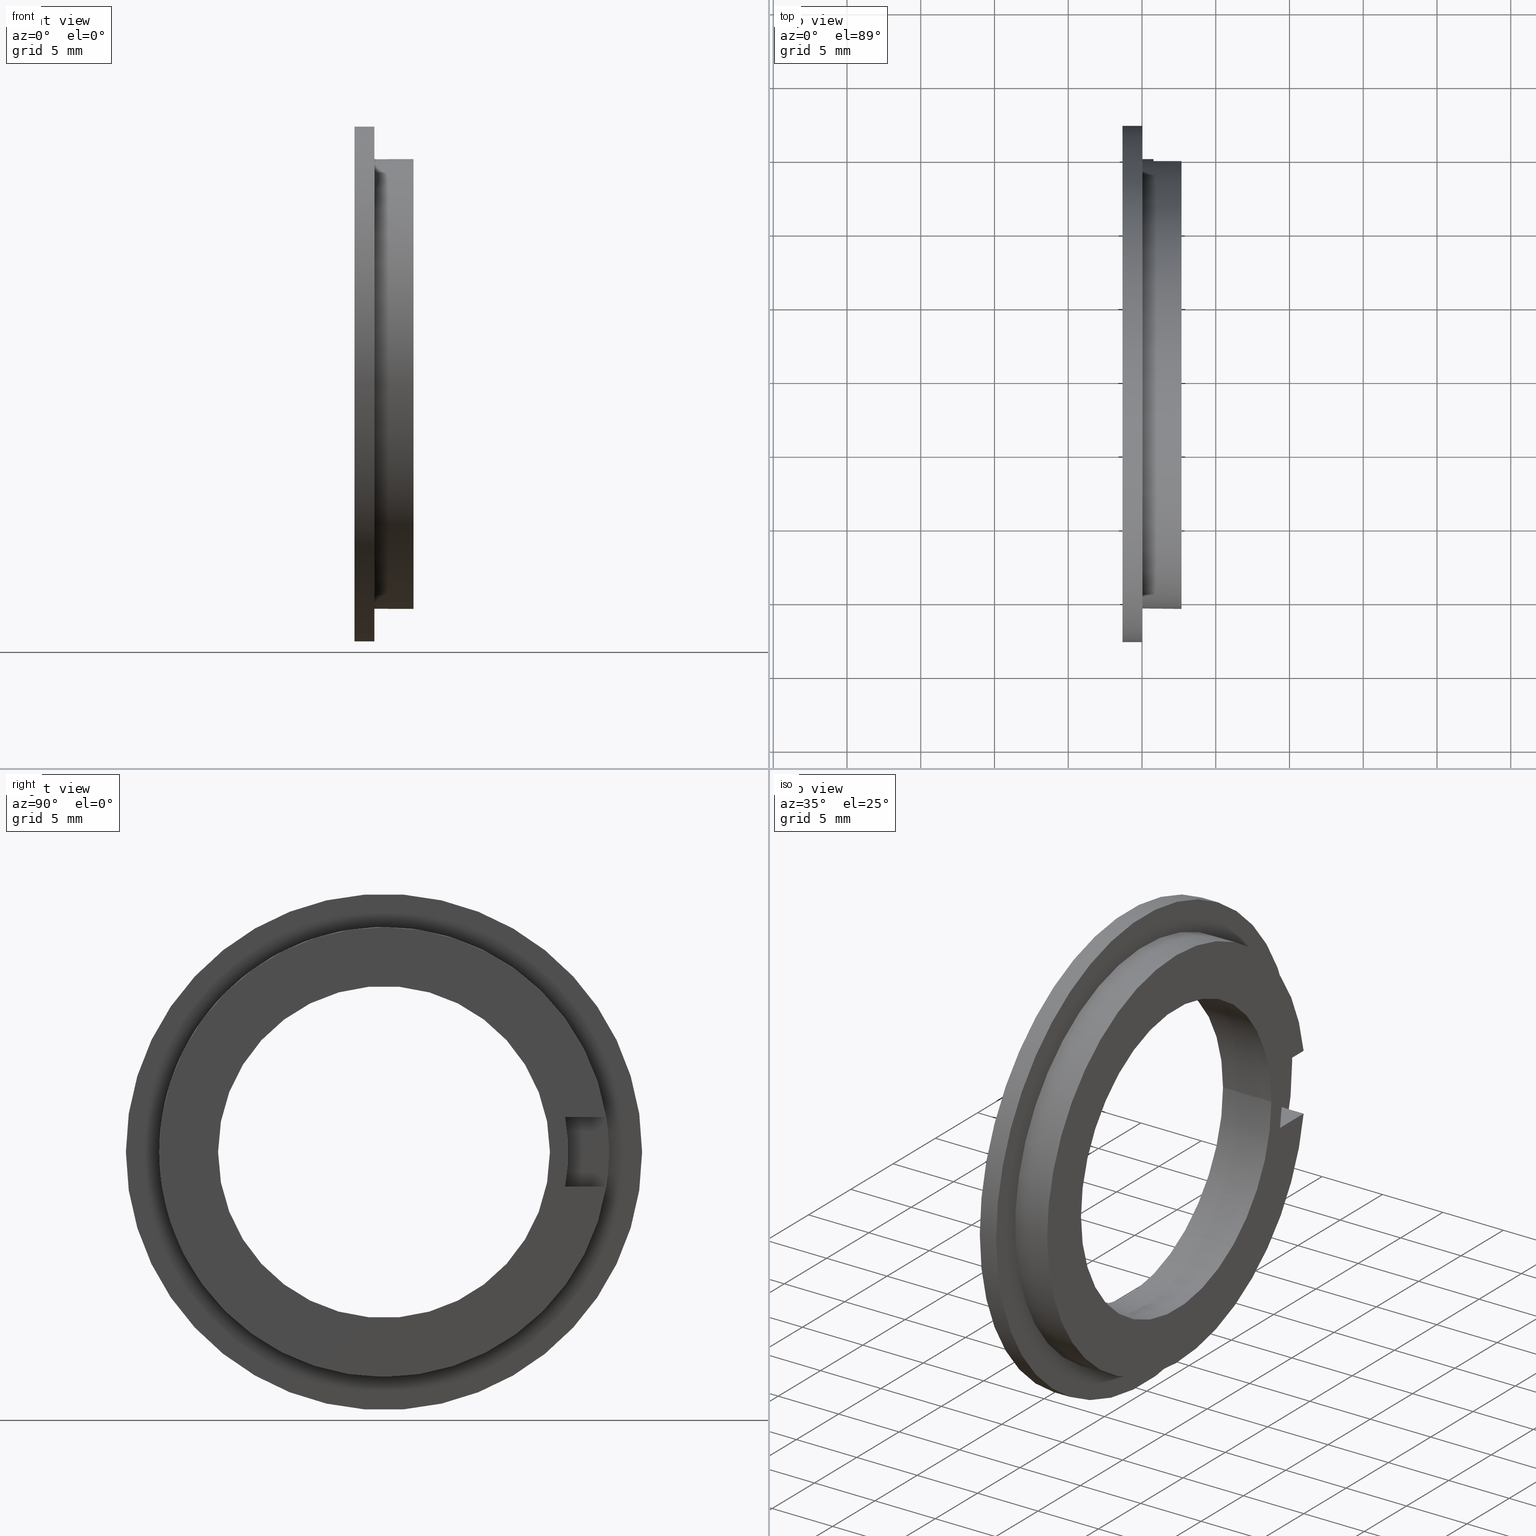
[diagram: canonical four-view strip — front | top / right | iso, engineering-drawing reading convention]
A machine part, canonical four-view strip (front | top / right | iso — engineering-drawing reading convention). The complete STEP part file that produces these views, byte-faithful:
ISO-10303-21;
HEADER;
/****************************************************************
 * Generated by software with PDE/Lib inside                    *
 * PDElib Version v51a, created Thu 12/14/2006                  *
 * International Technegroup Inc. (www.iti-oh.com)              *
 ****************************************************************/
FILE_DESCRIPTION((''),'2;1');
FILE_NAME('M:\\cad\\1PB\\2ADP\\2ADP.stp','2007-11-15T15:09:05',('Philipp'),(''),'Autodesk Inventor 2008','Autodesk Inventor 2008','');
FILE_SCHEMA(('AUTOMOTIVE_DESIGN { 1 0 10303 214 1 1 1 1 }'));
ENDSEC;
DATA;
#5=APPLICATION_CONTEXT('automotive design');
#6=APPLICATION_PROTOCOL_DEFINITION('International Standard','automotive_design',2001,#5);
#7=PRODUCT_CONTEXT('',#5,'mechanical');
#8=PRODUCT('2ADP','2ADP',$,(#7));
#9=PRODUCT_RELATED_PRODUCT_CATEGORY('part',$,(#8));
#10=PRODUCT_DEFINITION_FORMATION('',$,#8);
#11=PRODUCT_DEFINITION_CONTEXT('part definition',#5,'design');
#12=PRODUCT_DEFINITION('',$,#10,#11);
#18=(NAMED_UNIT(*)PLANE_ANGLE_UNIT()SI_UNIT($,.RADIAN.));
#19=DIMENSIONAL_EXPONENTS(0.0,0.0,0.0,0.0,0.0,0.0,0.0);
#20=PLANE_ANGLE_MEASURE_WITH_UNIT(PLANE_ANGLE_MEASURE(0.017453292500000),#18);
#24=(CONVERSION_BASED_UNIT('DEGREE',#20)NAMED_UNIT(#19)PLANE_ANGLE_UNIT());
#28=(NAMED_UNIT(*)SI_UNIT($,.STERADIAN.)SOLID_ANGLE_UNIT());
#32=(LENGTH_UNIT()NAMED_UNIT(*)SI_UNIT(.MILLI.,.METRE.));
#34=UNCERTAINTY_MEASURE_WITH_UNIT(LENGTH_MEASURE(0.010000000000000),#32,'DISTANCE_ACCURACY_VALUE','');
#36=(GEOMETRIC_REPRESENTATION_CONTEXT(3)GLOBAL_UNCERTAINTY_ASSIGNED_CONTEXT((#34))GLOBAL_UNIT_ASSIGNED_CONTEXT((#24,#28,#32))REPRESENTATION_CONTEXT('None','None'));
#37=AXIS2_PLACEMENT_3D('',#38,#39,#40);
#38=CARTESIAN_POINT('',(0.0,0.0,0.0));
#39=DIRECTION('',(0.0,0.0,1.0));
#40=DIRECTION('',(1.0,0.0,0.0));
#41=SHAPE_REPRESENTATION('',(#37),#36);
#42=PRODUCT_DEFINITION_SHAPE('','',#12);
#43=SHAPE_DEFINITION_REPRESENTATION(#42,#41);
#49=(NAMED_UNIT(*)PLANE_ANGLE_UNIT()SI_UNIT($,.RADIAN.));
#50=DIMENSIONAL_EXPONENTS(0.0,0.0,0.0,0.0,0.0,0.0,0.0);
#51=PLANE_ANGLE_MEASURE_WITH_UNIT(PLANE_ANGLE_MEASURE(0.017453292500000),#49);
#55=(CONVERSION_BASED_UNIT('DEGREE',#51)NAMED_UNIT(#50)PLANE_ANGLE_UNIT());
#59=(NAMED_UNIT(*)SI_UNIT($,.STERADIAN.)SOLID_ANGLE_UNIT());
#63=(LENGTH_UNIT()NAMED_UNIT(*)SI_UNIT(.MILLI.,.METRE.));
#65=UNCERTAINTY_MEASURE_WITH_UNIT(LENGTH_MEASURE(0.000001000000000),#63,'DISTANCE_ACCURACY_VALUE','');
#67=(GEOMETRIC_REPRESENTATION_CONTEXT(3)GLOBAL_UNCERTAINTY_ASSIGNED_CONTEXT((#65))GLOBAL_UNIT_ASSIGNED_CONTEXT((#55,#59,#63))REPRESENTATION_CONTEXT('','3D'));
#68=CARTESIAN_POINT('',(-2.322580550947496,4.653225097050933,0.0));
#69=DIRECTION('',(-1.0,0.0,0.0));
#70=DIRECTION('',(0.0,-0.982169028222739,0.188000000000000));
#71=AXIS2_PLACEMENT_3D('',#68,#69,#70);
#72=CYLINDRICAL_SURFACE('',#71,12.500000000000000);
#73=CARTESIAN_POINT('',(-4.222580550947495,16.930337949835174,2.350000000000001));
#74=VERTEX_POINT('',#73);
#75=CARTESIAN_POINT('',(-4.222580550947495,16.930337949835174,-2.349999999999998));
#76=VERTEX_POINT('',#75);
#77=CARTESIAN_POINT('',(-4.222580550947495,4.653225097050933,0.0));
#78=DIRECTION('',(-1.0,0.0,0.0));
#79=DIRECTION('',(0.0,-0.982169028222739,0.188000000000000));
#80=AXIS2_PLACEMENT_3D('',#77,#78,#79);
#81=CIRCLE('',#80,12.500000000000000);
#82=EDGE_CURVE('',#74,#76,#81,.T.);
#83=ORIENTED_EDGE('',*,*,#82,.F.);
#84=CARTESIAN_POINT('',(-2.322580550947496,16.930337949835174,2.350000000000001));
#85=VERTEX_POINT('',#84);
#86=CARTESIAN_POINT('',(-2.322580550947496,16.930337949835174,2.350000000000001));
#87=DIRECTION('',(-1.0,0.0,0.0));
#88=VECTOR('',#87,1.900000000000000);
#89=LINE('',#86,#88);
#90=EDGE_CURVE('',#85,#74,#89,.T.);
#91=ORIENTED_EDGE('',*,*,#90,.F.);
#92=CARTESIAN_POINT('',(-2.322580550947496,16.930337949835174,-2.349999999999998));
#93=VERTEX_POINT('',#92);
#94=CARTESIAN_POINT('',(-2.322580550947496,4.653225097050933,0.0));
#95=DIRECTION('',(1.0,0.0,0.0));
#96=DIRECTION('',(0.0,-0.982169028222739,0.188000000000000));
#97=AXIS2_PLACEMENT_3D('',#94,#95,#96);
#98=CIRCLE('',#97,12.500000000000000);
#99=EDGE_CURVE('',#93,#85,#98,.T.);
#100=ORIENTED_EDGE('',*,*,#99,.F.);
#101=CARTESIAN_POINT('',(-2.322580550947496,16.930337949835174,-2.349999999999998));
#102=DIRECTION('',(-1.0,0.0,0.0));
#103=VECTOR('',#102,1.900000000000000);
#104=LINE('',#101,#103);
#105=EDGE_CURVE('',#93,#76,#104,.T.);
#106=ORIENTED_EDGE('',*,*,#105,.T.);
#107=EDGE_LOOP('',(#83,#91,#100,#106));
#108=FACE_OUTER_BOUND('',#107,.T.);
#109=ADVANCED_FACE('',(#108),#72,.T.);
#110=CARTESIAN_POINT('',(-2.322580550947496,16.930337949835174,-2.349999999999998));
#111=DIRECTION('',(0.0,0.0,-1.0));
#112=DIRECTION('',(-1.0,0.0,0.0));
#113=AXIS2_PLACEMENT_3D('',#110,#111,#112);
#114=PLANE('',#113);
#115=CARTESIAN_POINT('',(-4.222580550947495,19.721071658520824,-2.349999999999998));
#116=VERTEX_POINT('',#115);
#117=CARTESIAN_POINT('',(-4.222580550947495,16.930337949835174,-2.349999999999998));
#118=DIRECTION('',(0.0,1.0,0.0));
#119=VECTOR('',#118,2.790733708685650);
#120=LINE('',#117,#119);
#121=EDGE_CURVE('',#76,#116,#120,.T.);
#122=ORIENTED_EDGE('',*,*,#121,.F.);
#123=ORIENTED_EDGE('',*,*,#105,.F.);
#124=CARTESIAN_POINT('',(-2.322580550947496,19.721071658520824,-2.349999999999998));
#125=VERTEX_POINT('',#124);
#126=CARTESIAN_POINT('',(-2.322580550947496,19.721071658520824,-2.349999999999998));
#127=DIRECTION('',(0.0,-1.0,0.0));
#128=VECTOR('',#127,2.790733708685650);
#129=LINE('',#126,#128);
#130=EDGE_CURVE('',#125,#93,#129,.T.);
#131=ORIENTED_EDGE('',*,*,#130,.F.);
#132=CARTESIAN_POINT('',(-4.222580550947495,19.721071658520824,-2.349999999999998));
#133=DIRECTION('',(1.0,0.0,0.0));
#134=VECTOR('',#133,1.900000000000000);
#135=LINE('',#132,#134);
#136=EDGE_CURVE('',#116,#125,#135,.T.);
#137=ORIENTED_EDGE('',*,*,#136,.F.);
#138=EDGE_LOOP('',(#122,#123,#131,#137));
#139=FACE_OUTER_BOUND('',#138,.T.);
#140=ADVANCED_FACE('',(#139),#114,.F.);
#141=CARTESIAN_POINT('',(-2.322580550947496,19.721071658520824,2.350000000000002));
#142=DIRECTION('',(0.0,0.0,1.0));
#143=DIRECTION('',(1.0,0.0,0.0));
#144=AXIS2_PLACEMENT_3D('',#141,#142,#143);
#145=PLANE('',#144);
#146=CARTESIAN_POINT('',(-4.222580550947495,19.721071658520824,2.350000000000002));
#147=VERTEX_POINT('',#146);
#148=CARTESIAN_POINT('',(-4.222580550947495,19.721071658520824,2.350000000000002));
#149=DIRECTION('',(0.0,-1.0,0.0));
#150=VECTOR('',#149,2.790733708685650);
#151=LINE('',#148,#150);
#152=EDGE_CURVE('',#147,#74,#151,.T.);
#153=ORIENTED_EDGE('',*,*,#152,.F.);
#154=CARTESIAN_POINT('',(-2.322580550947496,19.721071658520824,2.350000000000002));
#155=VERTEX_POINT('',#154);
#156=CARTESIAN_POINT('',(-2.322580550947496,19.721071658520824,2.350000000000002));
#157=DIRECTION('',(-1.0,0.0,0.0));
#158=VECTOR('',#157,1.900000000000000);
#159=LINE('',#156,#158);
#160=EDGE_CURVE('',#155,#147,#159,.T.);
#161=ORIENTED_EDGE('',*,*,#160,.F.);
#162=CARTESIAN_POINT('',(-2.322580550947496,16.930337949835174,2.350000000000001));
#163=DIRECTION('',(0.0,1.0,0.0));
#164=VECTOR('',#163,2.790733708685650);
#165=LINE('',#162,#164);
#166=EDGE_CURVE('',#85,#155,#165,.T.);
#167=ORIENTED_EDGE('',*,*,#166,.F.);
#168=ORIENTED_EDGE('',*,*,#90,.T.);
#169=EDGE_LOOP('',(#153,#161,#167,#168));
#170=FACE_OUTER_BOUND('',#169,.T.);
#171=ADVANCED_FACE('',(#170),#145,.F.);
#172=CARTESIAN_POINT('',(-4.222580550947495,18.401191787817602,2.365684E-015));
#173=DIRECTION('',(1.0,0.0,0.0));
#174=DIRECTION('',(0.0,0.0,-1.0));
#175=AXIS2_PLACEMENT_3D('',#172,#173,#174);
#176=PLANE('',#175);
#177=ORIENTED_EDGE('',*,*,#82,.T.);
#178=ORIENTED_EDGE('',*,*,#121,.T.);
#179=CARTESIAN_POINT('',(-4.222580550947495,4.653225097050933,0.0));
#180=DIRECTION('',(-1.0,0.0,0.0));
#181=DIRECTION('',(0.0,1.0,0.0));
#182=AXIS2_PLACEMENT_3D('',#179,#180,#181);
#183=CIRCLE('',#182,15.250000000000002);
#184=EDGE_CURVE('',#147,#116,#183,.T.);
#185=ORIENTED_EDGE('',*,*,#184,.F.);
#186=ORIENTED_EDGE('',*,*,#152,.T.);
#187=EDGE_LOOP('',(#177,#178,#185,#186));
#188=FACE_OUTER_BOUND('',#187,.T.);
#189=ADVANCED_FACE('',(#188),#176,.T.);
#190=CARTESIAN_POINT('',(-2.322580550947496,17.903225097050935,0.0));
#191=DIRECTION('',(1.0,0.0,0.0));
#192=DIRECTION('',(0.0,0.0,-1.0));
#193=AXIS2_PLACEMENT_3D('',#190,#191,#192);
#194=PLANE('',#193);
#195=ORIENTED_EDGE('',*,*,#130,.T.);
#196=ORIENTED_EDGE('',*,*,#99,.T.);
#197=ORIENTED_EDGE('',*,*,#166,.T.);
#198=CARTESIAN_POINT('',(-2.322580550947497,4.653225097050933,0.0));
#199=DIRECTION('',(1.0,0.0,0.0));
#200=DIRECTION('',(0.0,1.0,0.0));
#201=AXIS2_PLACEMENT_3D('',#198,#199,#200);
#202=CIRCLE('',#201,15.250000000000002);
#203=EDGE_CURVE('',#155,#125,#202,.T.);
#204=ORIENTED_EDGE('',*,*,#203,.T.);
#205=EDGE_LOOP('',(#195,#196,#197,#204));
#206=FACE_OUTER_BOUND('',#205,.T.);
#207=CARTESIAN_POINT('',(-2.322580550947495,15.903225097050932,0.0));
#208=VERTEX_POINT('',#207);
#209=CARTESIAN_POINT('',(-2.322580550947495,4.653225097050933,0.0));
#210=DIRECTION('',(1.0,0.0,0.0));
#211=DIRECTION('',(0.0,1.0,0.0));
#212=AXIS2_PLACEMENT_3D('',#209,#210,#211);
#213=CIRCLE('',#212,11.250000000000000);
#214=EDGE_CURVE('',#208,#208,#213,.T.);
#215=ORIENTED_EDGE('',*,*,#214,.F.);
#216=EDGE_LOOP('',(#215));
#217=FACE_BOUND('',#216,.T.);
#218=ADVANCED_FACE('',(#206,#217),#194,.T.);
#219=CARTESIAN_POINT('',(-6.322580550947499,19.028225097050932,0.0));
#220=DIRECTION('',(-1.0,0.0,0.0));
#221=DIRECTION('',(0.0,0.0,1.0));
#222=AXIS2_PLACEMENT_3D('',#219,#220,#221);
#223=PLANE('',#222);
#224=CARTESIAN_POINT('',(-6.322580550947500,22.153225097050932,0.0));
#225=VERTEX_POINT('',#224);
#226=CARTESIAN_POINT('',(-6.322580550947500,4.653225097050933,0.0));
#227=DIRECTION('',(1.0,0.0,0.0));
#228=DIRECTION('',(0.0,1.0,0.0));
#229=AXIS2_PLACEMENT_3D('',#226,#227,#228);
#230=CIRCLE('',#229,17.500000000000000);
#231=EDGE_CURVE('',#225,#225,#230,.T.);
#232=ORIENTED_EDGE('',*,*,#231,.F.);
#233=EDGE_LOOP('',(#232));
#234=FACE_OUTER_BOUND('',#233,.T.);
#235=CARTESIAN_POINT('',(-6.322580550947499,15.903225097050932,0.0));
#236=VERTEX_POINT('',#235);
#237=CARTESIAN_POINT('',(-6.322580550947499,4.653225097050933,0.0));
#238=DIRECTION('',(1.0,0.0,0.0));
#239=DIRECTION('',(0.0,1.0,0.0));
#240=AXIS2_PLACEMENT_3D('',#237,#238,#239);
#241=CIRCLE('',#240,11.250000000000000);
#242=EDGE_CURVE('',#236,#236,#241,.T.);
#243=ORIENTED_EDGE('',*,*,#242,.T.);
#244=EDGE_LOOP('',(#243));
#245=FACE_BOUND('',#244,.T.);
#246=ADVANCED_FACE('',(#234,#245),#223,.T.);
#247=CARTESIAN_POINT('',(-5.647580550947500,4.653225097050933,0.0));
#248=DIRECTION('',(1.0,0.0,0.0));
#249=DIRECTION('',(0.0,1.0,0.0));
#250=AXIS2_PLACEMENT_3D('',#247,#248,#249);
#251=CYLINDRICAL_SURFACE('',#250,17.500000000000000);
#252=CARTESIAN_POINT('',(-4.972580550947500,22.153225097050932,0.0));
#253=VERTEX_POINT('',#252);
#254=CARTESIAN_POINT('',(-4.972580550947500,4.653225097050933,0.0));
#255=DIRECTION('',(1.0,0.0,0.0));
#256=DIRECTION('',(0.0,1.0,0.0));
#257=AXIS2_PLACEMENT_3D('',#254,#255,#256);
#258=CIRCLE('',#257,17.500000000000000);
#259=EDGE_CURVE('',#253,#253,#258,.T.);
#260=ORIENTED_EDGE('',*,*,#259,.F.);
#261=EDGE_LOOP('',(#260));
#262=FACE_OUTER_BOUND('',#261,.T.);
#263=ORIENTED_EDGE('',*,*,#231,.T.);
#264=EDGE_LOOP('',(#263));
#265=FACE_BOUND('',#264,.T.);
#266=ADVANCED_FACE('',(#262,#265),#251,.T.);
#267=CARTESIAN_POINT('',(-4.972580550947500,21.028225097050935,0.0));
#268=DIRECTION('',(1.0,0.0,0.0));
#269=DIRECTION('',(0.0,0.0,-1.0));
#270=AXIS2_PLACEMENT_3D('',#267,#268,#269);
#271=PLANE('',#270);
#272=ORIENTED_EDGE('',*,*,#259,.T.);
#273=EDGE_LOOP('',(#272));
#274=FACE_OUTER_BOUND('',#273,.T.);
#275=CARTESIAN_POINT('',(-4.972580550947499,19.903225097050935,0.0));
#276=VERTEX_POINT('',#275);
#277=CARTESIAN_POINT('',(-4.972580550947499,4.653225097050933,0.0));
#278=DIRECTION('',(1.0,0.0,0.0));
#279=DIRECTION('',(0.0,1.0,0.0));
#280=AXIS2_PLACEMENT_3D('',#277,#278,#279);
#281=CIRCLE('',#280,15.250000000000002);
#282=EDGE_CURVE('',#276,#276,#281,.T.);
#283=ORIENTED_EDGE('',*,*,#282,.F.);
#284=EDGE_LOOP('',(#283));
#285=FACE_BOUND('',#284,.T.);
#286=ADVANCED_FACE('',(#274,#285),#271,.T.);
#287=CARTESIAN_POINT('',(-3.647580550947498,4.653225097050933,0.0));
#288=DIRECTION('',(1.0,0.0,0.0));
#289=DIRECTION('',(0.0,1.0,0.0));
#290=AXIS2_PLACEMENT_3D('',#287,#288,#289);
#291=CYLINDRICAL_SURFACE('',#290,15.250000000000002);
#292=ORIENTED_EDGE('',*,*,#136,.T.);
#293=ORIENTED_EDGE('',*,*,#203,.F.);
#294=ORIENTED_EDGE('',*,*,#160,.T.);
#295=ORIENTED_EDGE('',*,*,#184,.T.);
#296=EDGE_LOOP('',(#292,#293,#294,#295));
#297=FACE_OUTER_BOUND('',#296,.T.);
#298=ORIENTED_EDGE('',*,*,#282,.T.);
#299=EDGE_LOOP('',(#298));
#300=FACE_BOUND('',#299,.T.);
#301=ADVANCED_FACE('',(#297,#300),#291,.T.);
#302=CARTESIAN_POINT('',(-4.322580550947497,4.653225097050933,0.0));
#303=DIRECTION('',(1.0,0.0,0.0));
#304=DIRECTION('',(0.0,1.0,0.0));
#305=AXIS2_PLACEMENT_3D('',#302,#303,#304);
#306=CYLINDRICAL_SURFACE('',#305,11.250000000000000);
#307=ORIENTED_EDGE('',*,*,#242,.F.);
#308=EDGE_LOOP('',(#307));
#309=FACE_OUTER_BOUND('',#308,.T.);
#310=ORIENTED_EDGE('',*,*,#214,.T.);
#311=EDGE_LOOP('',(#310));
#312=FACE_BOUND('',#311,.T.);
#313=ADVANCED_FACE('',(#309,#312),#306,.F.);
#314=CLOSED_SHELL('',(#109,#140,#171,#189,#218,#246,#266,#286,#301,#313));
#315=MANIFOLD_SOLID_BREP('',#314);
#316=DRAUGHTING_PRE_DEFINED_COLOUR('white');
#317=FILL_AREA_STYLE_COLOUR('Chrome',#316);
#318=FILL_AREA_STYLE('Chrome',(#317));
#319=SURFACE_STYLE_FILL_AREA(#318);
#320=SURFACE_SIDE_STYLE('Chrome',(#319));
#321=SURFACE_STYLE_USAGE(.BOTH.,#320);
#322=PRESENTATION_STYLE_ASSIGNMENT((#321));
#323=STYLED_ITEM('',(#322),#315);
#324=MECHANICAL_DESIGN_GEOMETRIC_PRESENTATION_REPRESENTATION('',(#323),#36);
#325=ADVANCED_BREP_SHAPE_REPRESENTATION('ABSR',(#315),#36);
#326=SHAPE_REPRESENTATION_RELATIONSHIP('SRR','None',#325,#41);
ENDSEC;
END-ISO-10303-21;
